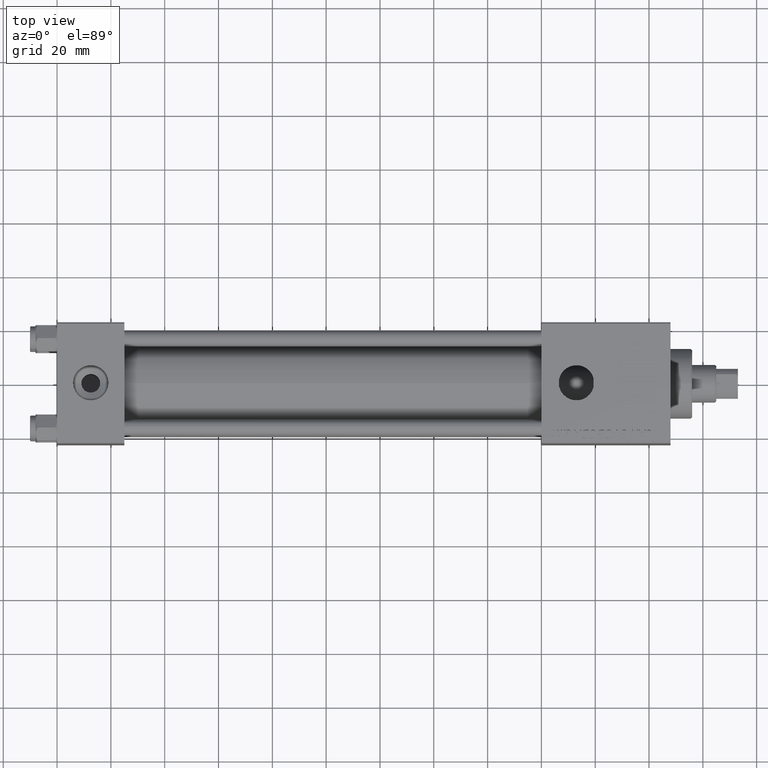
[diagram: clean part render]
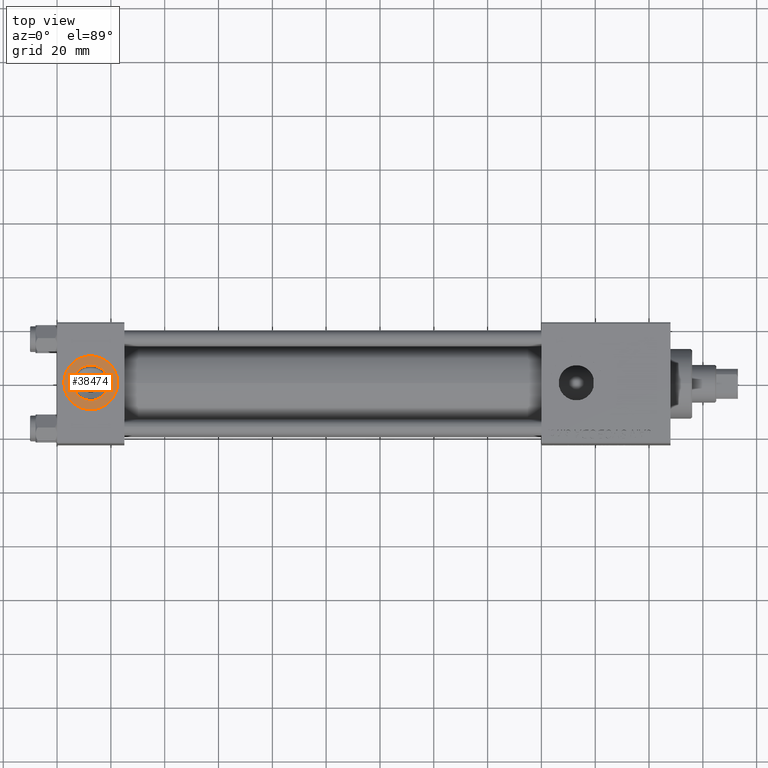
[diagram: same view with one face highlighted and labeled with its STEP entity id]
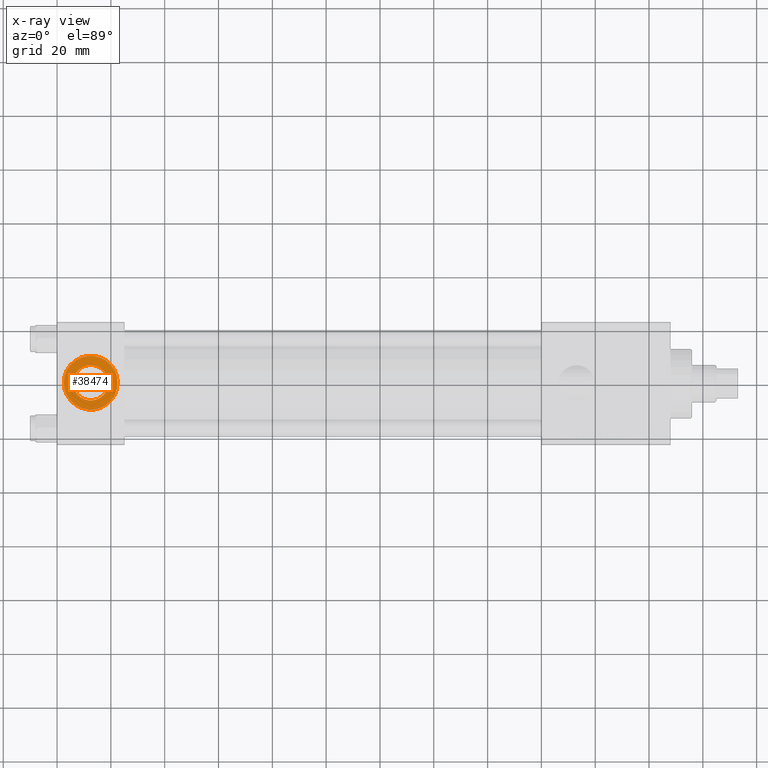
[diagram: x-ray of the same camera — body ghosted, the highlighted face saturated]
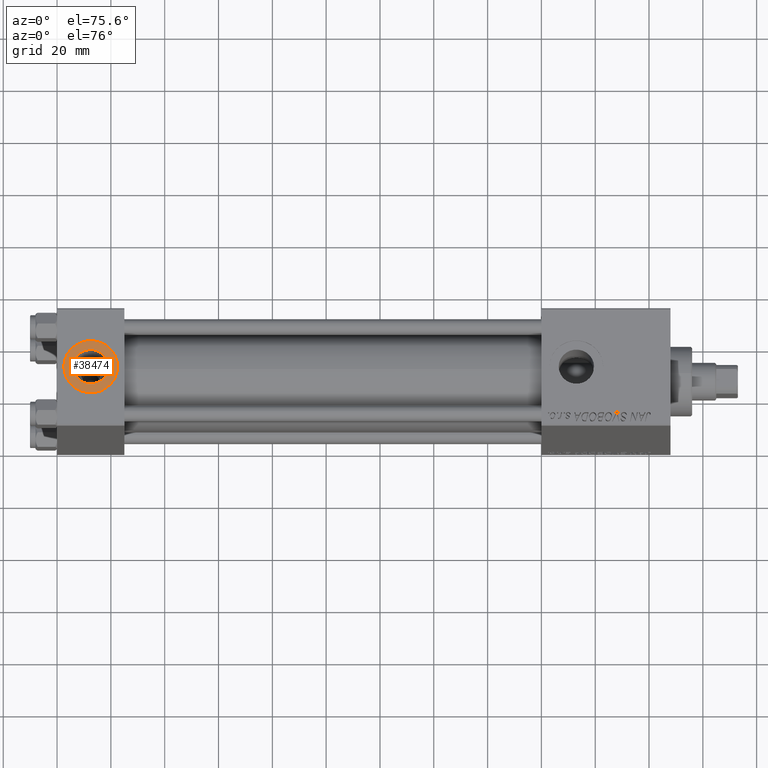
[diagram: same view with one face highlighted and labeled with its STEP entity id]
A machine part, top view. The second image highlights one B-rep face of the part: STEP entity #38474.
The next image is the same camera in x-ray: the body ghosted, the highlighted face saturated — about 0% of this face is hidden behind the body in this view.
A second angle (auxiliary view) of the same face is appended — the face is thin or edge-on in the first view.
In plain terms, the highlighted planar face has unit normal (0, 0, 1).
Its self-contained STEP definition (entity closure, byte-faithful):
#1260 = DIRECTION ( 'NONE',  ( 0.000000000000000000, 0.000000000000000000, 1.000000000000000000 ) ) ;
#4706 = CARTESIAN_POINT ( 'NONE',  ( 12.50000000000000000, -1.734723475976807094E-15, 22.30000000000000071 ) ) ;
#6140 = VERTEX_POINT ( 'NONE', #38871 ) ;
#6771 = AXIS2_PLACEMENT_3D ( 'NONE', #31405, #27446, #39595 ) ;
#6803 = CIRCLE ( 'NONE', #20268, 9.999999999999998224 ) ;
#7650 = EDGE_LOOP ( 'NONE', ( #38034, #50978 ) ) ;
#8649 = CARTESIAN_POINT ( 'NONE',  ( 12.50000000000000000, -1.734723475976807094E-15, 22.30000000000000071 ) ) ;
#13488 = PLANE ( 'NONE',  #38392 ) ;
#13636 = DIRECTION ( 'NONE',  ( 1.000000000000000000, 0.000000000000000000, 0.000000000000000000 ) ) ;
#15399 = DIRECTION ( 'NONE',  ( 0.000000000000000000, 0.000000000000000000, 1.000000000000000000 ) ) ;
#15635 = CARTESIAN_POINT ( 'NONE',  ( 2.500000000000003997, -5.100766768294543310E-16, 22.30000000000000071 ) ) ;
#16635 = VERTEX_POINT ( 'NONE', #24785 ) ;
#16818 = DIRECTION ( 'NONE',  ( 0.000000000000000000, 0.000000000000000000, 1.000000000000000000 ) ) ;
#17242 = AXIS2_PLACEMENT_3D ( 'NONE', #8649, #1260, #13636 ) ;
#17437 = FACE_BOUND ( 'NONE', #31315, .T. ) ;
#20268 = AXIS2_PLACEMENT_3D ( 'NONE', #42880, #15399, #38932 ) ;
#21019 = EDGE_CURVE ( 'NONE', #16635, #44428, #38801, .T. ) ;
#21393 = DIRECTION ( 'NONE',  ( 1.000000000000000000, 0.000000000000000000, -0.000000000000000000 ) ) ;
#21657 = CARTESIAN_POINT ( 'NONE',  ( 12.50000000000000000, -1.734723475976807094E-15, 22.30000000000000071 ) ) ;
#22278 = VERTEX_POINT ( 'NONE', #24479 ) ;
#23293 = AXIS2_PLACEMENT_3D ( 'NONE', #4706, #16818, #49037 ) ;
#24479 = CARTESIAN_POINT ( 'NONE',  ( 19.07999999999999829, -1.734723475976807094E-15, 22.30000000000000071 ) ) ;
#24785 = CARTESIAN_POINT ( 'NONE',  ( 22.50000000000000000, -1.734723475976807094E-15, 22.30000000000000071 ) ) ;
#25376 = FACE_OUTER_BOUND ( 'NONE', #7650, .T. ) ;
#25993 = EDGE_CURVE ( 'NONE', #44428, #16635, #6803, .T. ) ;
#27446 = DIRECTION ( 'NONE',  ( 0.000000000000000000, 0.000000000000000000, 1.000000000000000000 ) ) ;
#28115 = ORIENTED_EDGE ( 'NONE', *, *, #40812, .F. ) ;
#29053 = CIRCLE ( 'NONE', #17242, 6.579999999999999183 ) ;
#31315 = EDGE_LOOP ( 'NONE', ( #46961, #28115 ) ) ;
#31405 = CARTESIAN_POINT ( 'NONE',  ( 12.50000000000000000, -1.734723475976807094E-15, 22.30000000000000071 ) ) ;
#33418 = CIRCLE ( 'NONE', #23293, 6.579999999999999183 ) ;
#33530 = EDGE_CURVE ( 'NONE', #22278, #6140, #29053, .T. ) ;
#38034 = ORIENTED_EDGE ( 'NONE', *, *, #21019, .T. ) ;
#38392 = AXIS2_PLACEMENT_3D ( 'NONE', #21657, #44912, #21393 ) ;
#38474 = ADVANCED_FACE ( 'NONE', ( #17437, #25376 ), #13488, .T. ) ;
#38801 = CIRCLE ( 'NONE', #6771, 9.999999999999998224 ) ;
#38871 = CARTESIAN_POINT ( 'NONE',  ( 5.920000000000002593, -9.289058821378490386E-16, 22.30000000000000071 ) ) ;
#38932 = DIRECTION ( 'NONE',  ( 1.000000000000000000, 0.000000000000000000, 0.000000000000000000 ) ) ;
#39595 = DIRECTION ( 'NONE',  ( 1.000000000000000000, 0.000000000000000000, 0.000000000000000000 ) ) ;
#40812 = EDGE_CURVE ( 'NONE', #6140, #22278, #33418, .T. ) ;
#42880 = CARTESIAN_POINT ( 'NONE',  ( 12.50000000000000000, -1.734723475976807094E-15, 22.30000000000000071 ) ) ;
#44428 = VERTEX_POINT ( 'NONE', #15635 ) ;
#44912 = DIRECTION ( 'NONE',  ( 0.000000000000000000, 0.000000000000000000, 1.000000000000000000 ) ) ;
#46961 = ORIENTED_EDGE ( 'NONE', *, *, #33530, .F. ) ;
#49037 = DIRECTION ( 'NONE',  ( 1.000000000000000000, 0.000000000000000000, 0.000000000000000000 ) ) ;
#50978 = ORIENTED_EDGE ( 'NONE', *, *, #25993, .T. ) ;